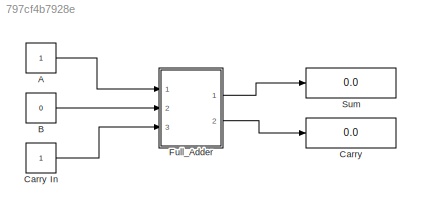
MODEL slx_797cf4b7928e
KIND model
CONFIG AbsTol = auto
CONFIG EnableMultiTasking = off
CONFIG FixedStep = auto
CONFIG MaxStep = auto
CONFIG MinStep = auto
CONFIG RelTol = 1e-3
CONFIG SampleTimeConstraint = Unconstrained
CONFIG Solver = VariableStepAuto
CONFIG SolverName = VariableStepAuto
CONFIG StartTime = 0.0
CONFIG StopTime = 10.0
BLOCK [Constant] A
  OutDataTypeStr = boolean
BLOCK [Constant] B
  OutDataTypeStr = boolean
  Value = 0
BLOCK [Display] Carry
  Decimation = 1
  Ports = [1]
BLOCK [Constant] Carry In
  OutDataTypeStr = boolean
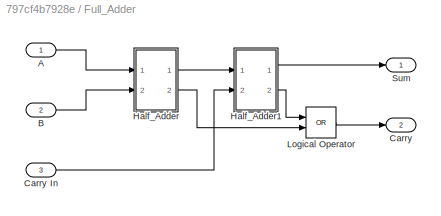
BLOCK [SubSystem] Full_Adder
  Ports = [3, 2]
  RequestExecContextInheritance = off
BLOCK [Inport] Full_Adder/A
  IconDisplay = Port number
BLOCK [Inport] Full_Adder/B
  IconDisplay = Port number
  Port = 2
BLOCK [Outport] Full_Adder/Carry
  IconDisplay = Port number
  Port = 2
BLOCK [Inport] Full_Adder/Carry In
  IconDisplay = Port number
  Port = 3
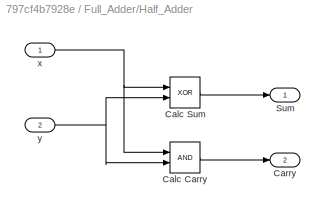
BLOCK [SubSystem] Full_Adder/Half_Adder
  Ports = [2, 2]
  RequestExecContextInheritance = off
BLOCK [Logic] Full_Adder/Half_Adder/Calc Carry
  AllPortsSameDT = off
  OutDataTypeStr = boolean
  Ports = [2, 1]
BLOCK [Logic] Full_Adder/Half_Adder/Calc Sum
  AllPortsSameDT = off
  Operator = XOR
  OutDataTypeStr = boolean
  Ports = [2, 1]
BLOCK [Outport] Full_Adder/Half_Adder/Carry
  IconDisplay = Port number
  Port = 2
BLOCK [Outport] Full_Adder/Half_Adder/Sum
  IconDisplay = Port number
BLOCK [Inport] Full_Adder/Half_Adder/x
  IconDisplay = Port number
BLOCK [Inport] Full_Adder/Half_Adder/y
  IconDisplay = Port number
  Port = 2
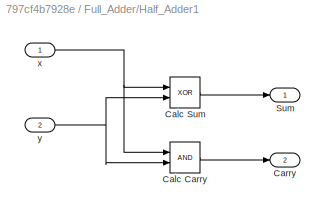
BLOCK [SubSystem] Full_Adder/Half_Adder1
  Ports = [2, 2]
  RequestExecContextInheritance = off
BLOCK [Logic] Full_Adder/Half_Adder1/Calc Carry
  AllPortsSameDT = off
  OutDataTypeStr = boolean
  Ports = [2, 1]
BLOCK [Logic] Full_Adder/Half_Adder1/Calc Sum
  AllPortsSameDT = off
  Operator = XOR
  OutDataTypeStr = boolean
  Ports = [2, 1]
BLOCK [Outport] Full_Adder/Half_Adder1/Carry
  IconDisplay = Port number
  Port = 2
BLOCK [Outport] Full_Adder/Half_Adder1/Sum
  IconDisplay = Port number
BLOCK [Inport] Full_Adder/Half_Adder1/x
  IconDisplay = Port number
BLOCK [Inport] Full_Adder/Half_Adder1/y
  IconDisplay = Port number
  Port = 2
BLOCK [Logic] Full_Adder/Logical Operator
  AllPortsSameDT = off
  Operator = OR
  OutDataTypeStr = boolean
  Ports = [2, 1]
BLOCK [Outport] Full_Adder/Sum
  IconDisplay = Port number
BLOCK [Display] Sum
  Decimation = 1
  Ports = [1]
LINE A:1 -> Full_Adder:1
LINE B:1 -> Full_Adder:2
LINE Carry In:1 -> Full_Adder:3
LINE Full_Adder/A:1 -> Full_Adder/Half_Adder:1
LINE Full_Adder/B:1 -> Full_Adder/Half_Adder:2
LINE Full_Adder/Carry In:1 -> Full_Adder/Half_Adder1:2
LINE Full_Adder/Half_Adder/Calc Carry:1 -> Full_Adder/Half_Adder/Carry:1
LINE Full_Adder/Half_Adder/Calc Sum:1 -> Full_Adder/Half_Adder/Sum:1
NET Full_Adder/Half_Adder/x:1 -> Full_Adder/Half_Adder/Calc Carry:1, Full_Adder/Half_Adder/Calc Sum:1
NET Full_Adder/Half_Adder/y:1 -> Full_Adder/Half_Adder/Calc Carry:2, Full_Adder/Half_Adder/Calc Sum:2
LINE Full_Adder/Half_Adder1/Calc Carry:1 -> Full_Adder/Half_Adder1/Carry:1
LINE Full_Adder/Half_Adder1/Calc Sum:1 -> Full_Adder/Half_Adder1/Sum:1
NET Full_Adder/Half_Adder1/x:1 -> Full_Adder/Half_Adder1/Calc Carry:1, Full_Adder/Half_Adder1/Calc Sum:1
NET Full_Adder/Half_Adder1/y:1 -> Full_Adder/Half_Adder1/Calc Carry:2, Full_Adder/Half_Adder1/Calc Sum:2
LINE Full_Adder/Half_Adder1:1 -> Full_Adder/Sum:1
LINE Full_Adder/Half_Adder1:2 -> Full_Adder/Logical Operator:1
LINE Full_Adder/Half_Adder:1 -> Full_Adder/Half_Adder1:1
LINE Full_Adder/Half_Adder:2 -> Full_Adder/Logical Operator:2
LINE Full_Adder/Logical Operator:1 -> Full_Adder/Carry:1
LINE Full_Adder:1 -> Sum:1
LINE Full_Adder:2 -> Carry:1
note: NET lines group one-source signal fan-out (src -> all destinations, sorted); 1:1 wires keep LINE
